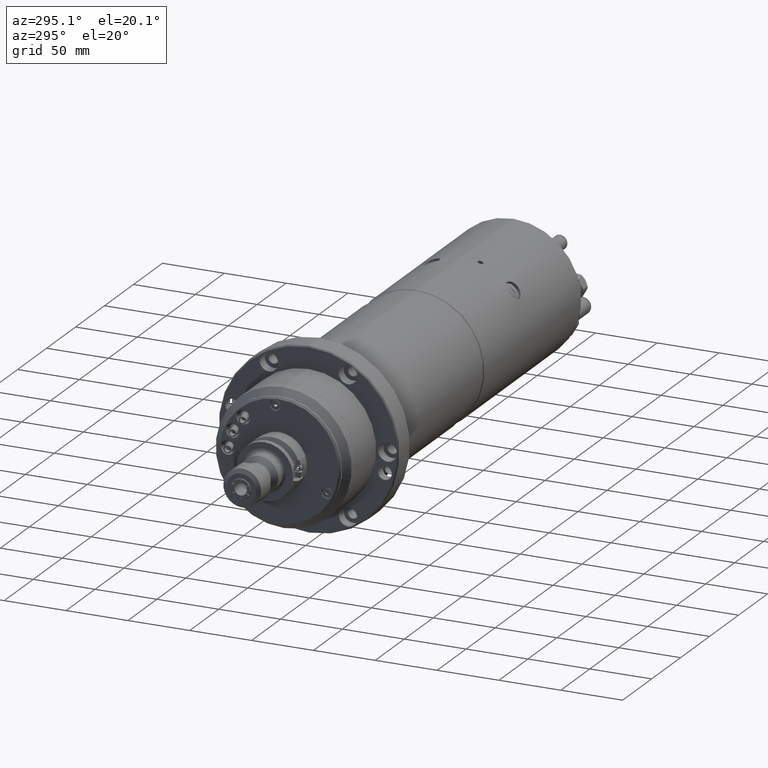
[diagram: clean part render]
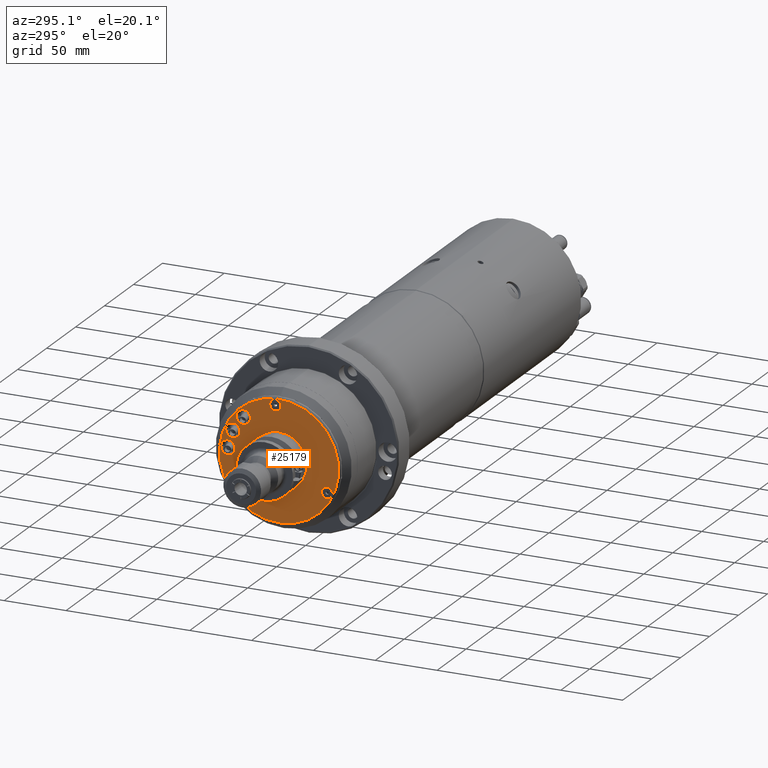
[diagram: same view with one face highlighted and labeled with its STEP entity id]
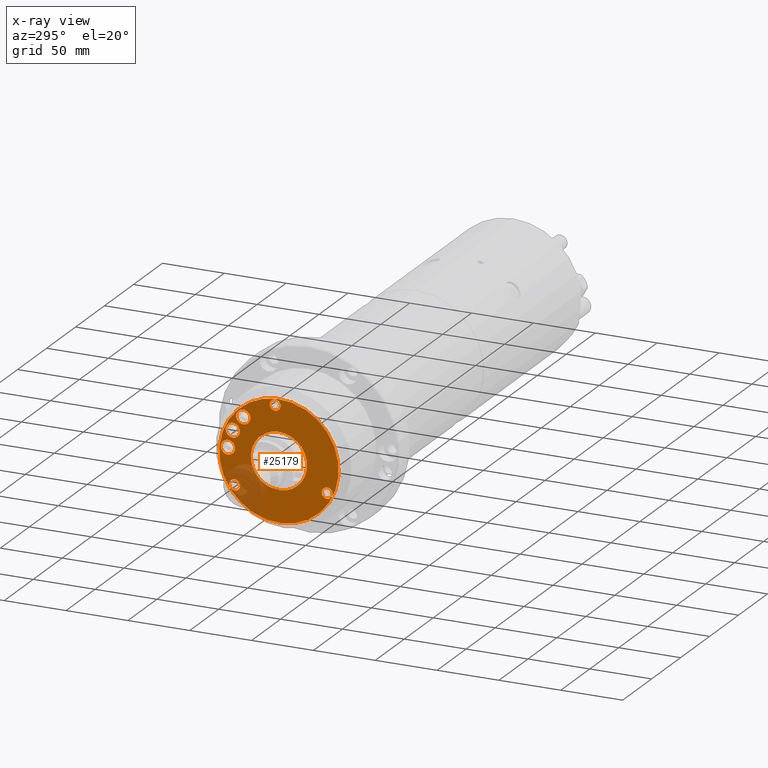
[diagram: x-ray of the same camera — body ghosted, the highlighted face saturated]
A machine part, auxiliary view. The second image highlights one B-rep face of the part: STEP entity #25179.
The next image is the same camera in x-ray: the body ghosted, the highlighted face saturated — about 13% of this face is hidden behind the body in this view.
In plain terms, the highlighted planar face has unit normal (-1, -0, -0).
Its self-contained STEP definition (entity closure, byte-faithful):
#281 = DIRECTION ( 'NONE',  ( -1.000000000000000000, -3.993375403273151900E-017, -1.787865335247585900E-016 ) ) ;
#302 = CARTESIAN_POINT ( 'NONE',  ( 4.000000000000000000, 41.27265865778338100, 4.337931225607675900 ) ) ;
#305 = DIRECTION ( 'NONE',  ( -1.000000000000000000, -3.993375403273151900E-017, -1.787865335247585900E-016 ) ) ;
#306 = DIRECTION ( 'NONE',  ( -1.508455196501569500E-016, -0.4383711467890830100, 0.8987940462991641500 ) ) ;
#356 = DIRECTION ( 'NONE',  ( -1.508455196501569000E-016, -0.4383711467890834500, 0.8987940462991640400 ) ) ;
#1320 = EDGE_LOOP ( 'NONE', ( #8285, #8376 ) ) ;
#1443 = EDGE_LOOP ( 'NONE', ( #8466, #8418 ) ) ;
#1453 = EDGE_LOOP ( 'NONE', ( #8430, #8395 ) ) ;
#1524 = EDGE_LOOP ( 'NONE', ( #8421, #8431 ) ) ;
#1532 = EDGE_LOOP ( 'NONE', ( #8452, #8435 ) ) ;
#1640 = EDGE_LOOP ( 'NONE', ( #8257, #8287 ) ) ;
#2200 = CARTESIAN_POINT ( 'NONE',  ( 4.000000000000008000, 35.85587501300563000, -24.18509307510987200 ) ) ;
#2201 = DIRECTION ( 'NONE',  ( -1.000000000000000000, -3.993375403273151900E-017, -1.787865335247585900E-016 ) ) ;
#2202 = DIRECTION ( 'NONE',  ( -1.949127501097533200E-016, -0.4383711467890838400, 0.8987940462991639300 ) ) ;
#3617 = EDGE_CURVE ( 'NONE', #5943, #6064, #10268, .T. ) ;
#3646 = EDGE_CURVE ( 'NONE', #6065, #6195, #10454, .T. ) ;
#4203 = EDGE_CURVE ( 'NONE', #8978, #8873, #6519, .T. ) ;
#4297 = EDGE_CURVE ( 'NONE', #6064, #5943, #6575, .T. ) ;
#4352 = EDGE_CURVE ( 'NONE', #6099, #6103, #6474, .T. ) ;
#4373 = EDGE_CURVE ( 'NONE', #8873, #8978, #6415, .T. ) ;
#4435 = EDGE_CURVE ( 'NONE', #6195, #6065, #6827, .T. ) ;
#4480 = EDGE_CURVE ( 'NONE', #9051, #9063, #6804, .T. ) ;
#4514 = EDGE_CURVE ( 'NONE', #6103, #6099, #6833, .T. ) ;
#4526 = EDGE_CURVE ( 'NONE', #8970, #8926, #6692, .T. ) ;
#4788 = EDGE_LOOP ( 'NONE', ( #8422, #8420 ) ) ;
#4953 = EDGE_LOOP ( 'NONE', ( #8405, #8442 ) ) ;
#5943 = VERTEX_POINT ( 'NONE', #27236 ) ;
#6064 = VERTEX_POINT ( 'NONE', #27293 ) ;
#6065 = VERTEX_POINT ( 'NONE', #27414 ) ;
#6099 = VERTEX_POINT ( 'NONE', #27823 ) ;
#6103 = VERTEX_POINT ( 'NONE', #27662 ) ;
#6195 = VERTEX_POINT ( 'NONE', #27576 ) ;
#6415 = CIRCLE ( 'NONE', #13080, 48.25000000000009200 ) ;
#6474 = CIRCLE ( 'NONE', #13093, 22.70000000000002400 ) ;
#6519 = CIRCLE ( 'NONE', #15727, 48.25000000000009200 ) ;
#6575 = CIRCLE ( 'NONE', #13115, 4.450000000000002000 ) ;
#6692 = CIRCLE ( 'NONE', #13126, 4.450000000000006400 ) ;
#6804 = CIRCLE ( 'NONE', #13006, 5.750000000000004400 ) ;
#6827 = CIRCLE ( 'NONE', #12632, 4.450000000000006400 ) ;
#6833 = CIRCLE ( 'NONE', #13132, 22.70000000000002400 ) ;
#6892 = AXIS2_PLACEMENT_3D ( 'NONE', #9577, #9584, #9551 ) ;
#8257 = ORIENTED_EDGE ( 'NONE', *, *, #4373, .T. ) ;
#8285 = ORIENTED_EDGE ( 'NONE', *, *, #28419, .F. ) ;
#8287 = ORIENTED_EDGE ( 'NONE', *, *, #4203, .T. ) ;
#8376 = ORIENTED_EDGE ( 'NONE', *, *, #28724, .F. ) ;
#8395 = ORIENTED_EDGE ( 'NONE', *, *, #3617, .F. ) ;
#8405 = ORIENTED_EDGE ( 'NONE', *, *, #28536, .F. ) ;
#8418 = ORIENTED_EDGE ( 'NONE', *, *, #28307, .F. ) ;
#8420 = ORIENTED_EDGE ( 'NONE', *, *, #4352, .F. ) ;
#8421 = ORIENTED_EDGE ( 'NONE', *, *, #4435, .F. ) ;
#8422 = ORIENTED_EDGE ( 'NONE', *, *, #4514, .F. ) ;
#8430 = ORIENTED_EDGE ( 'NONE', *, *, #4297, .F. ) ;
#8431 = ORIENTED_EDGE ( 'NONE', *, *, #3646, .F. ) ;
#8435 = ORIENTED_EDGE ( 'NONE', *, *, #28960, .F. ) ;
#8442 = ORIENTED_EDGE ( 'NONE', *, *, #29028, .F. ) ;
#8452 = ORIENTED_EDGE ( 'NONE', *, *, #4480, .F. ) ;
#8466 = ORIENTED_EDGE ( 'NONE', *, *, #4526, .F. ) ;
#8873 = VERTEX_POINT ( 'NONE', #12964 ) ;
#8876 = VERTEX_POINT ( 'NONE', #12973 ) ;
#8926 = VERTEX_POINT ( 'NONE', #13074 ) ;
#8970 = VERTEX_POINT ( 'NONE', #12525 ) ;
#8978 = VERTEX_POINT ( 'NONE', #12518 ) ;
#8981 = VERTEX_POINT ( 'NONE', #12517 ) ;
#8992 = VERTEX_POINT ( 'NONE', #12503 ) ;
#9049 = VERTEX_POINT ( 'NONE', #12462 ) ;
#9051 = VERTEX_POINT ( 'NONE', #12455 ) ;
#9063 = VERTEX_POINT ( 'NONE', #12421 ) ;
#9551 = DIRECTION ( 'NONE',  ( -1.431864663395966400E-016, -0.4383711467890835100, 0.8987940462991640400 ) ) ;
#9558 = PLANE ( 'NONE',  #6892 ) ;
#9577 = CARTESIAN_POINT ( 'NONE',  ( 4.000000000000003600, -7.926056903993826700E-015, -5.951695778378572200E-014 ) ) ;
#9584 = DIRECTION ( 'NONE',  ( -1.000000000000000000, -3.993375403273174700E-017, -1.787865335247580700E-016 ) ) ;
#10268 = CIRCLE ( 'NONE', #15758, 4.450000000000002000 ) ;
#10454 = CIRCLE ( 'NONE', #15754, 4.450000000000006400 ) ;
#12123 = CIRCLE ( 'NONE', #18892, 5.750000000000007100 ) ;
#12421 = CARTESIAN_POINT ( 'NONE',  ( 4.000000000000002700, 39.82058701545257400, 13.02433682552674200 ) ) ;
#12455 = CARTESIAN_POINT ( 'NONE',  ( 4.000000000000000900, 34.77931882737811300, 23.36046835796712900 ) ) ;
#12462 = CARTESIAN_POINT ( 'NONE',  ( 4.000000000000000900, 43.79329275182060900, -0.8301345406125162400 ) ) ;
#12503 = CARTESIAN_POINT ( 'NONE',  ( 3.999999999999999100, 38.75202456374614700, 9.505996991827876400 ) ) ;
#12517 = CARTESIAN_POINT ( 'NONE',  ( 3.999999999999997300, 31.34895646808555400, 24.68453594783390800 ) ) ;
#12518 = CARTESIAN_POINT ( 'NONE',  ( 3.999999999999996400, -21.15140783257331900, 43.36681273393468000 ) ) ;
#12525 = CARTESIAN_POINT ( 'NONE',  ( 4.000000000000007100, 33.90512340979420000, -20.18545956907858500 ) ) ;
#12632 = AXIS2_PLACEMENT_3D ( 'NONE', #17438, #17439, #17435 ) ;
#12964 = CARTESIAN_POINT ( 'NONE',  ( 4.000000000000010700, 21.15140783257331200, -43.36681273393480800 ) ) ;
#12973 = CARTESIAN_POINT ( 'NONE',  ( 3.999999999999995600, 26.30768828001108500, 35.02066748027430500 ) ) ;
#13006 = AXIS2_PLACEMENT_3D ( 'NONE', #17814, #17828, #17827 ) ;
#13074 = CARTESIAN_POINT ( 'NONE',  ( 4.000000000000008900, 37.80662661621705200, -28.18472658114115600 ) ) ;
#13080 = AXIS2_PLACEMENT_3D ( 'NONE', #17963, #17966, #17967 ) ;
#13093 = AXIS2_PLACEMENT_3D ( 'NONE', #18021, #17531, #17368 ) ;
#13115 = AXIS2_PLACEMENT_3D ( 'NONE', #17768, #17769, #17776 ) ;
#13126 = AXIS2_PLACEMENT_3D ( 'NONE', #17536, #17576, #17550 ) ;
#13132 = AXIS2_PLACEMENT_3D ( 'NONE', #18049, #18012, #18060 ) ;
#14570 = CIRCLE ( 'NONE', #18695, 5.750000000000008900 ) ;
#14608 = CIRCLE ( 'NONE', #18761, 5.750000000000007100 ) ;
#14962 = CIRCLE ( 'NONE', #18798, 4.450000000000006400 ) ;
#15069 = FACE_BOUND ( 'NONE', #1320, .T. ) ;
#15071 = FACE_BOUND ( 'NONE', #4953, .T. ) ;
#15073 = FACE_BOUND ( 'NONE', #1453, .T. ) ;
#15075 = FACE_BOUND ( 'NONE', #1524, .T. ) ;
#15076 = FACE_BOUND ( 'NONE', #4788, .T. ) ;
#15080 = FACE_BOUND ( 'NONE', #1443, .T. ) ;
#15084 = FACE_BOUND ( 'NONE', #1532, .T. ) ;
#15088 = FACE_OUTER_BOUND ( 'NONE', #1640, .T. ) ;
#15727 = AXIS2_PLACEMENT_3D ( 'NONE', #17302, #17304, #17362 ) ;
#15754 = AXIS2_PLACEMENT_3D ( 'NONE', #26214, #26118, #26201 ) ;
#15758 = AXIS2_PLACEMENT_3D ( 'NONE', #26079, #26199, #26187 ) ;
#17302 = CARTESIAN_POINT ( 'NONE',  ( 4.000000000000003600, -7.926056903993826700E-015, -5.951695778378572200E-014 ) ) ;
#17304 = DIRECTION ( 'NONE',  ( -1.000000000000000000, -3.993375403273151900E-017, -1.787865335247585900E-016 ) ) ;
#17362 = DIRECTION ( 'NONE',  ( -1.438112726198386500E-016, -0.4383711467890835100, 0.8987940462991639300 ) ) ;
#17368 = DIRECTION ( 'NONE',  ( -1.528390727732868100E-016, -0.4383711467890835700, 0.8987940462991640400 ) ) ;
#17435 = DIRECTION ( 'NONE',  ( -1.949127501097533200E-016, -0.4383711467890838400, 0.8987940462991639300 ) ) ;
#17438 = CARTESIAN_POINT ( 'NONE',  ( 4.000000000000006200, -38.87284250243889300, -18.95955209862793800 ) ) ;
#17439 = DIRECTION ( 'NONE',  ( -1.000000000000000000, -3.993375403273151900E-017, -1.787865335247585900E-016 ) ) ;
#17531 = DIRECTION ( 'NONE',  ( -1.000000000000000000, -3.993375403273151900E-017, -1.787865335247585900E-016 ) ) ;
#17536 = CARTESIAN_POINT ( 'NONE',  ( 4.000000000000008000, 35.85587501300563000, -24.18509307510987200 ) ) ;
#17550 = DIRECTION ( 'NONE',  ( -1.949127501097533200E-016, -0.4383711467890838400, 0.8987940462991639300 ) ) ;
#17576 = DIRECTION ( 'NONE',  ( -1.000000000000000000, -3.993375403273151900E-017, -1.787865335247585900E-016 ) ) ;
#17768 = CARTESIAN_POINT ( 'NONE',  ( 3.999999999999993300, 3.016967489433137800, 43.14464517373740900 ) ) ;
#17769 = DIRECTION ( 'NONE',  ( -1.000000000000000000, -3.993375403273151900E-017, -1.787865335247585900E-016 ) ) ;
#17776 = DIRECTION ( 'NONE',  ( -1.949127501097535200E-016, -0.4383711467890834000, 0.8987940462991641500 ) ) ;
#17814 = CARTESIAN_POINT ( 'NONE',  ( 4.000000000000001800, 37.29995292141534700, 18.19240259174693400 ) ) ;
#17827 = DIRECTION ( 'NONE',  ( -1.508455196501570200E-016, -0.4383711467890831800, 0.8987940462991641500 ) ) ;
#17828 = DIRECTION ( 'NONE',  ( -1.000000000000000000, -3.993375403273151900E-017, -1.787865335247585900E-016 ) ) ;
#17963 = CARTESIAN_POINT ( 'NONE',  ( 4.000000000000003600, -7.926056903993826700E-015, -5.951695778378572200E-014 ) ) ;
#17966 = DIRECTION ( 'NONE',  ( -1.000000000000000000, -3.993375403273151900E-017, -1.787865335247585900E-016 ) ) ;
#17967 = DIRECTION ( 'NONE',  ( -1.438112726198386500E-016, -0.4383711467890835100, 0.8987940462991639300 ) ) ;
#18012 = DIRECTION ( 'NONE',  ( -1.000000000000000000, -3.993375403273151900E-017, -1.787865335247585900E-016 ) ) ;
#18021 = CARTESIAN_POINT ( 'NONE',  ( 4.000000000000003600, -7.926056903993826700E-015, -5.951695778378572200E-014 ) ) ;
#18049 = CARTESIAN_POINT ( 'NONE',  ( 4.000000000000003600, -7.926056903993826700E-015, -5.951695778378572200E-014 ) ) ;
#18060 = DIRECTION ( 'NONE',  ( -1.528390727732868100E-016, -0.4383711467890835700, 0.8987940462991640400 ) ) ;
#18103 = CIRCLE ( 'NONE', #19228, 5.750000000000004400 ) ;
#18548 = CIRCLE ( 'NONE', #19154, 5.750000000000008900 ) ;
#18695 = AXIS2_PLACEMENT_3D ( 'NONE', #30586, #281, #356 ) ;
#18761 = AXIS2_PLACEMENT_3D ( 'NONE', #302, #305, #306 ) ;
#18798 = AXIS2_PLACEMENT_3D ( 'NONE', #2200, #2201, #2202 ) ;
#18892 = AXIS2_PLACEMENT_3D ( 'NONE', #21409, #21407, #21405 ) ;
#19154 = AXIS2_PLACEMENT_3D ( 'NONE', #22672, #22562, #22624 ) ;
#19228 = AXIS2_PLACEMENT_3D ( 'NONE', #22094, #22095, #22096 ) ;
#21405 = DIRECTION ( 'NONE',  ( -1.508455196501569500E-016, -0.4383711467890830100, 0.8987940462991641500 ) ) ;
#21407 = DIRECTION ( 'NONE',  ( -1.000000000000000000, -3.993375403273151900E-017, -1.787865335247585900E-016 ) ) ;
#21409 = CARTESIAN_POINT ( 'NONE',  ( 4.000000000000000000, 41.27265865778338100, 4.337931225607675900 ) ) ;
#22094 = CARTESIAN_POINT ( 'NONE',  ( 4.000000000000001800, 37.29995292141534700, 18.19240259174693400 ) ) ;
#22095 = DIRECTION ( 'NONE',  ( -1.000000000000000000, -3.993375403273151900E-017, -1.787865335247585900E-016 ) ) ;
#22096 = DIRECTION ( 'NONE',  ( -1.508455196501570200E-016, -0.4383711467890831800, 0.8987940462991641500 ) ) ;
#22562 = DIRECTION ( 'NONE',  ( -1.000000000000000000, -3.993375403273151900E-017, -1.787865335247585900E-016 ) ) ;
#22624 = DIRECTION ( 'NONE',  ( -1.508455196501569000E-016, -0.4383711467890834500, 0.8987940462991640400 ) ) ;
#22672 = CARTESIAN_POINT ( 'NONE',  ( 3.999999999999996400, 28.82832237404831900, 29.85260171405410300 ) ) ;
#25179 = ADVANCED_FACE ( 'NONE', ( #15088, #15071, #15084, #15069, #15080, #15073, #15075, #15076 ), #9558, .T. ) ;
#26079 = CARTESIAN_POINT ( 'NONE',  ( 3.999999999999993300, 3.016967489433137800, 43.14464517373740900 ) ) ;
#26118 = DIRECTION ( 'NONE',  ( -1.000000000000000000, -3.993375403273151900E-017, -1.787865335247585900E-016 ) ) ;
#26187 = DIRECTION ( 'NONE',  ( -1.949127501097535200E-016, -0.4383711467890834000, 0.8987940462991641500 ) ) ;
#26199 = DIRECTION ( 'NONE',  ( -1.000000000000000000, -3.993375403273151900E-017, -1.787865335247585900E-016 ) ) ;
#26201 = DIRECTION ( 'NONE',  ( -1.949127501097533200E-016, -0.4383711467890838400, 0.8987940462991639300 ) ) ;
#26214 = CARTESIAN_POINT ( 'NONE',  ( 4.000000000000006200, -38.87284250243889300, -18.95955209862793800 ) ) ;
#27236 = CARTESIAN_POINT ( 'NONE',  ( 3.999999999999994200, 4.967719092644560200, 39.14501166770612900 ) ) ;
#27293 = CARTESIAN_POINT ( 'NONE',  ( 3.999999999999992500, 1.066215886221715700, 47.14427867976868900 ) ) ;
#27414 = CARTESIAN_POINT ( 'NONE',  ( 4.000000000000007100, -36.92209089922747000, -22.95918560465922200 ) ) ;
#27576 = CARTESIAN_POINT ( 'NONE',  ( 4.000000000000005300, -40.82359410565032200, -14.95991859259665100 ) ) ;
#27662 = CARTESIAN_POINT ( 'NONE',  ( 4.000000000000007100, 9.951025032112188000, -20.40262485099108100 ) ) ;
#27823 = CARTESIAN_POINT ( 'NONE',  ( 4.000000000000000000, -9.951025032112200500, 20.40262485099096400 ) ) ;
#28307 = EDGE_CURVE ( 'NONE', #8926, #8970, #14962, .T. ) ;
#28419 = EDGE_CURVE ( 'NONE', #8876, #8981, #14570, .T. ) ;
#28536 = EDGE_CURVE ( 'NONE', #8992, #9049, #14608, .T. ) ;
#28724 = EDGE_CURVE ( 'NONE', #8981, #8876, #18548, .T. ) ;
#28960 = EDGE_CURVE ( 'NONE', #9063, #9051, #18103, .T. ) ;
#29028 = EDGE_CURVE ( 'NONE', #9049, #8992, #12123, .T. ) ;
#30586 = CARTESIAN_POINT ( 'NONE',  ( 3.999999999999996400, 28.82832237404831900, 29.85260171405410300 ) ) ;